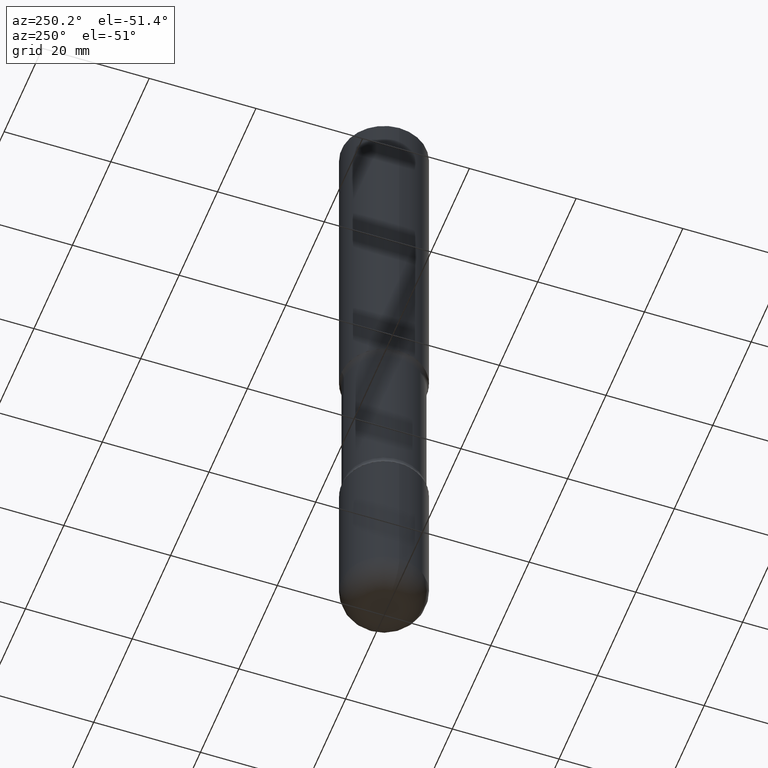
[diagram: clean part render]
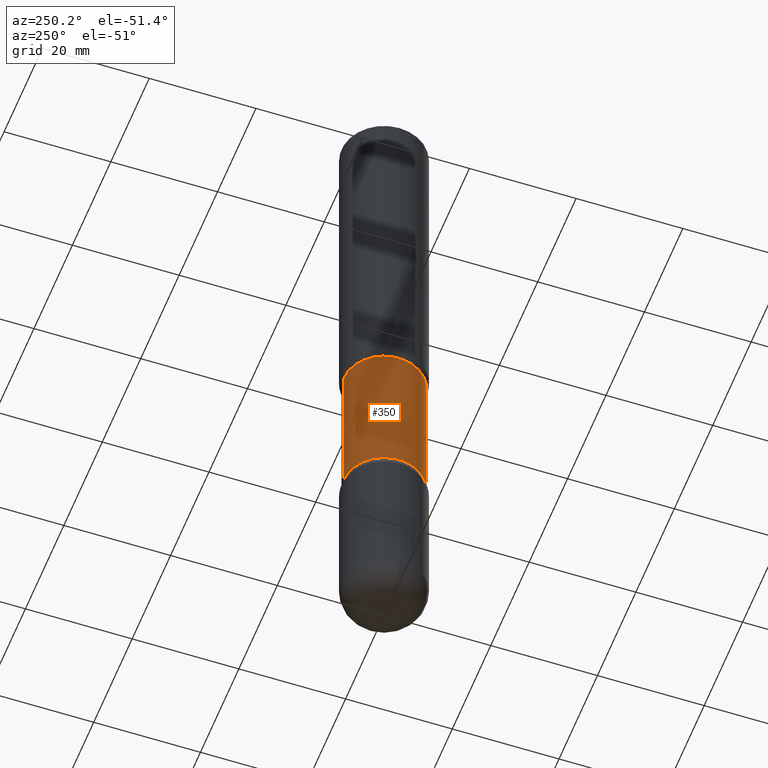
[diagram: same view with one face highlighted and labeled with its STEP entity id]
A machine part, auxiliary view. The second image highlights one B-rep face of the part: STEP entity #350.
In plain terms, the highlighted cylindrical surface (partial cylindrical patch) has radius 7.5406 mm, axis along (0, -0, -1).
Its self-contained STEP definition (entity closure, byte-faithful):
#7 = AXIS2_PLACEMENT_3D ( 'NONE', #174, #43, #542 ) ;
#15 = CYLINDRICAL_SURFACE ( 'NONE', #475, 0.2968750000000000000 ) ;
#19 = AXIS2_PLACEMENT_3D ( 'NONE', #220, #166, #439 ) ;
#33 = EDGE_CURVE ( 'NONE', #494, #222, #183, .T. ) ;
#43 = DIRECTION ( 'NONE',  ( 2.521457479434076939E-29, -3.382661233743975076E-15, -1.000000000000000000 ) ) ;
#46 = CARTESIAN_POINT ( 'NONE',  ( 2.073067044938200360E-15, 0.2968749999999871214, -3.689484635215509289 ) ) ;
#98 = VECTOR ( 'NONE', #370, 39.37007874015748143 ) ;
#145 = CIRCLE ( 'NONE', #7, 0.2968750000000000000 ) ;
#152 = EDGE_CURVE ( 'NONE', #222, #264, #168, .T. ) ;
#166 = DIRECTION ( 'NONE',  ( 2.521457479434076939E-29, -3.382661233743975076E-15, -1.000000000000000000 ) ) ;
#168 = CIRCLE ( 'NONE', #19, 0.2968750000000000000 ) ;
#174 = CARTESIAN_POINT ( 'NONE',  ( 6.171273093058203090E-29, -9.069431456984199816E-15, -2.560515364784490711 ) ) ;
#183 = LINE ( 'NONE', #187, #98 ) ;
#187 = CARTESIAN_POINT ( 'NONE',  ( -2.036710343088299976E-15, -0.2968750000000173195, -4.999999999999999112 ) ) ;
#188 = DIRECTION ( 'NONE',  ( 6.982962677686266711E-15, 1.000000000000000000, -3.680805717779217644E-15 ) ) ;
#193 = DIRECTION ( 'NONE',  ( 2.521457479434076939E-29, -3.382661233743975076E-15, -1.000000000000000000 ) ) ;
#219 = CARTESIAN_POINT ( 'NONE',  ( -2.090307983695953569E-15, -0.2968750000000091038, -2.560515364784489822 ) ) ;
#220 = CARTESIAN_POINT ( 'NONE',  ( 9.017921104037724021E-29, -1.288835204215942242E-14, -3.689484635215508401 ) ) ;
#222 = VERTEX_POINT ( 'NONE', #397 ) ;
#228 = VECTOR ( 'NONE', #453, 39.37007874015748143 ) ;
#229 = ORIENTED_EDGE ( 'NONE', *, *, #426, .T. ) ;
#237 = VERTEX_POINT ( 'NONE', #252 ) ;
#252 = CARTESIAN_POINT ( 'NONE',  ( 2.073067044938171961E-15, 0.2968749999999909517, -2.560515364784492043 ) ) ;
#255 = EDGE_LOOP ( 'NONE', ( #359, #334, #229, #464 ) ) ;
#264 = VERTEX_POINT ( 'NONE', #46 ) ;
#321 = EDGE_CURVE ( 'NONE', #494, #237, #145, .T. ) ;
#325 = FACE_OUTER_BOUND ( 'NONE', #255, .T. ) ;
#334 = ORIENTED_EDGE ( 'NONE', *, *, #321, .T. ) ;
#350 = ADVANCED_FACE ( 'NONE', ( #325 ), #15, .T. ) ;
#359 = ORIENTED_EDGE ( 'NONE', *, *, #33, .F. ) ;
#365 = CARTESIAN_POINT ( 'NONE',  ( 1.232232987248685960E-28, -1.732138156284176685E-14, -5.000000000000000000 ) ) ;
#370 = DIRECTION ( 'NONE',  ( 2.521457479434076939E-29, -3.382661233743974681E-15, -1.000000000000000000 ) ) ;
#397 = CARTESIAN_POINT ( 'NONE',  ( -2.090307983695922804E-15, -0.2968750000000128786, -3.689484635215507069 ) ) ;
#426 = EDGE_CURVE ( 'NONE', #237, #264, #532, .T. ) ;
#439 = DIRECTION ( 'NONE',  ( 6.982962677686265133E-15, 1.000000000000000000, -3.680805717779217644E-15 ) ) ;
#453 = DIRECTION ( 'NONE',  ( 2.521457479434076939E-29, -3.382661233743974681E-15, -1.000000000000000000 ) ) ;
#464 = ORIENTED_EDGE ( 'NONE', *, *, #152, .F. ) ;
#466 = CARTESIAN_POINT ( 'NONE',  ( 2.073067044938233492E-15, 0.2968749999999827360, -5.000000000000000888 ) ) ;
#475 = AXIS2_PLACEMENT_3D ( 'NONE', #365, #193, #188 ) ;
#494 = VERTEX_POINT ( 'NONE', #219 ) ;
#532 = LINE ( 'NONE', #466, #228 ) ;
#542 = DIRECTION ( 'NONE',  ( 6.982962677686266711E-15, 1.000000000000000000, -3.680805717779217644E-15 ) ) ;